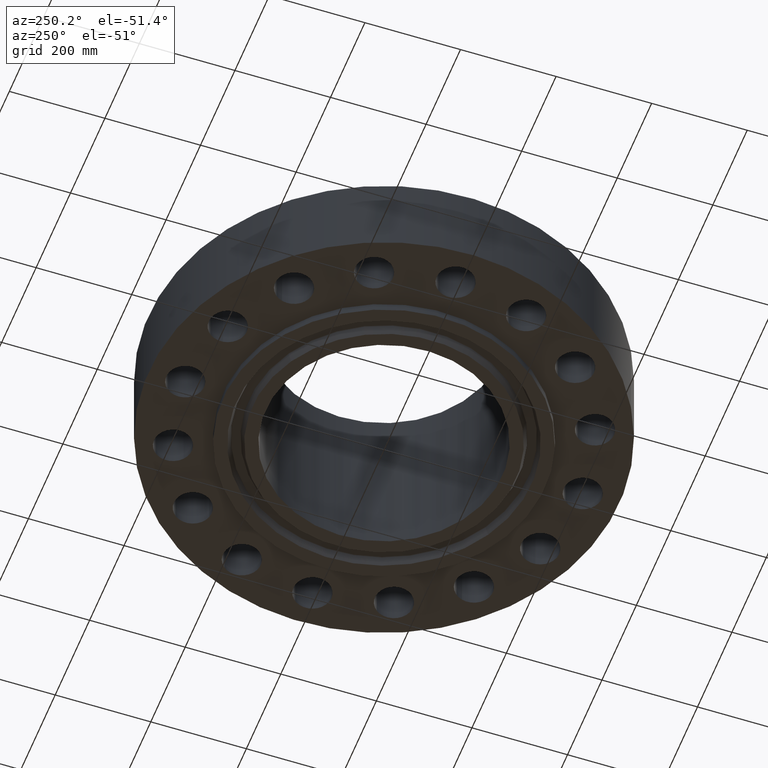
[diagram: clean part render]
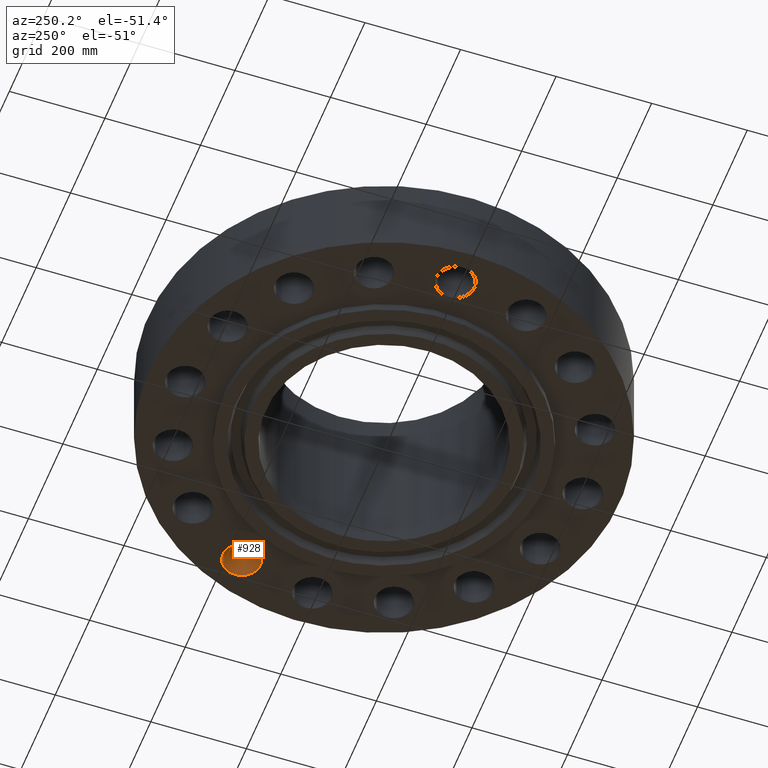
[diagram: same view with one face highlighted and labeled with its STEP entity id]
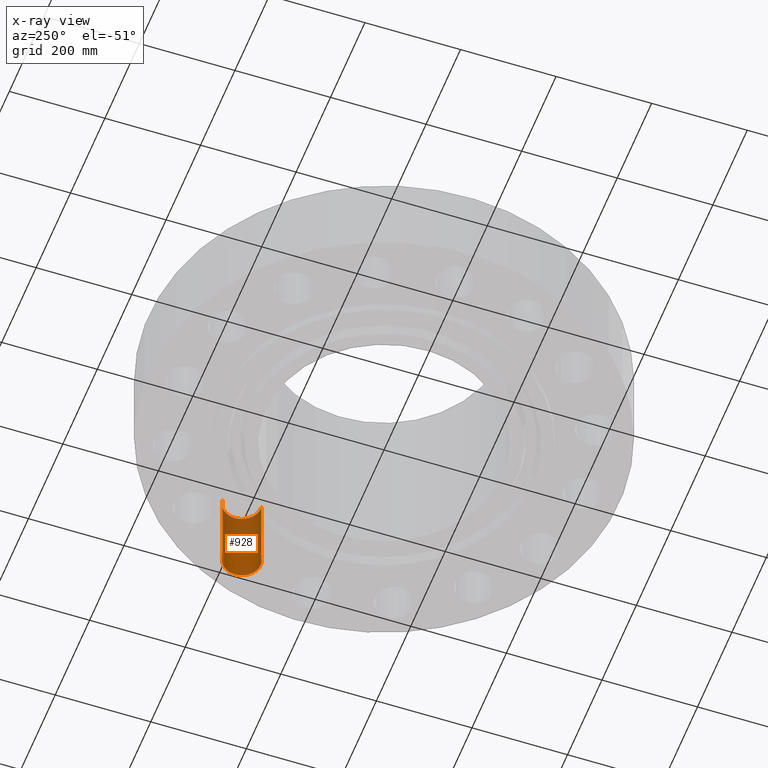
[diagram: x-ray of the same camera — body ghosted, the highlighted face saturated]
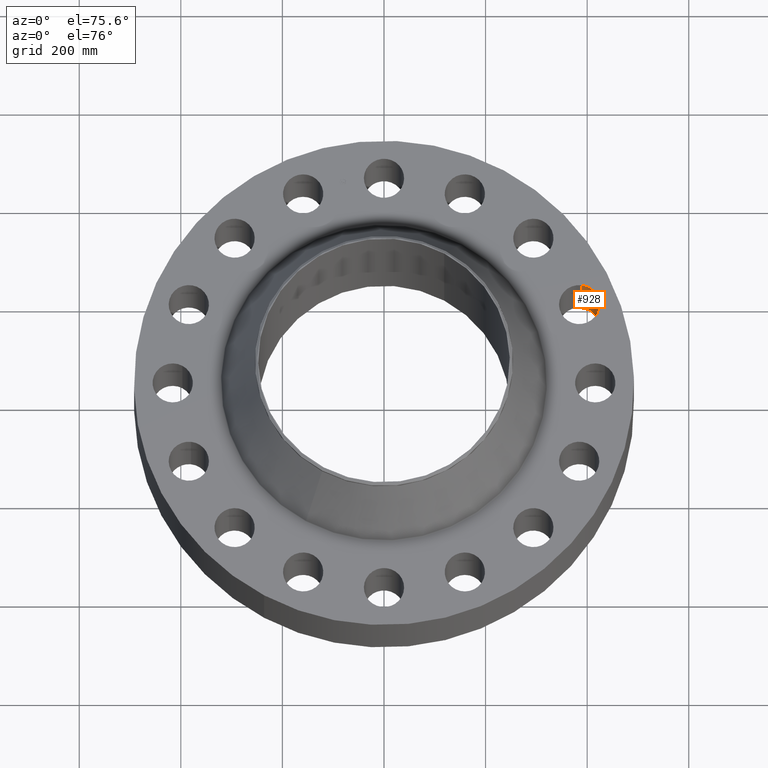
[diagram: same view with one face highlighted and labeled with its STEP entity id]
A machine part, auxiliary view. The second image highlights one B-rep face of the part: STEP entity #928.
The next image is the same camera in x-ray: the body ghosted, the highlighted face saturated — about 36% of this face is hidden behind the body in this view.
A second angle (auxiliary view) of the same face is appended — the face is thin or edge-on in the first view.
In plain terms, the highlighted cylindrical surface (edge-blend (fillet) strip) has radius 39.624 mm, axis along (0, -0, -1).
Its self-contained STEP definition (entity closure, byte-faithful):
#536=AXIS2_PLACEMENT_3D('Circle Axis2P3D',#534,#535,$) ;
#901=AXIS2_PLACEMENT_3D('Cylinder Axis2P3D',#898,#899,#900) ;
#919=AXIS2_PLACEMENT_3D('Circle Axis2P3D',#917,#918,$) ;
#534=CARTESIAN_POINT('Axis2P3D Location',(15.1285273449,6.266441205,0.)) ;
#538=CARTESIAN_POINT('Vertex',(15.2955957563,7.81746929822,0.)) ;
#540=CARTESIAN_POINT('Vertex',(14.9614589335,4.71541311179,0.)) ;
#898=CARTESIAN_POINT('Axis2P3D Location',(15.1285273449,6.266441205,6.99606299215)) ;
#903=CARTESIAN_POINT('Line Origine',(15.2955957563,7.81746929822,3.50000000001)) ;
#907=CARTESIAN_POINT('Vertex',(15.2955957563,7.81746929822,7.00000000003)) ;
#910=CARTESIAN_POINT('Line Origine',(14.9614589335,4.71541311179,3.50000000001)) ;
#914=CARTESIAN_POINT('Vertex',(14.9614589335,4.71541311179,7.00000000003)) ;
#917=CARTESIAN_POINT('Axis2P3D Location',(15.1285273449,6.266441205,7.00000000003)) ;
#535=DIRECTION('Axis2P3D Direction',(0.,0.,-0.0393700787402)) ;
#899=DIRECTION('Axis2P3D Direction',(0.,-0.,-0.0393700787402)) ;
#900=DIRECTION('Axis2P3D XDirection',(-0.00421634391778,-0.0391436526652,0.)) ;
#904=DIRECTION('Vector Direction',(0.,0.,-0.0393700787402)) ;
#911=DIRECTION('Vector Direction',(0.,0.,-0.0393700787402)) ;
#918=DIRECTION('Axis2P3D Direction',(0.,-0.,-0.0393700787402)) ;
#905=VECTOR('Line Direction',#904,0.0393700787402) ;
#912=VECTOR('Line Direction',#911,0.0393700787402) ;
#923=ORIENTED_EDGE('',*,*,#909,.F.) ;
#924=ORIENTED_EDGE('',*,*,#542,.T.) ;
#925=ORIENTED_EDGE('',*,*,#916,.T.) ;
#926=ORIENTED_EDGE('',*,*,#921,.F.) ;
#928=ADVANCED_FACE('PartBody',(#927),#902,.F.) ;
#537=CIRCLE('generated circle',#536,1.56000000001) ;
#920=CIRCLE('generated circle',#919,1.56000000001) ;
#902=CYLINDRICAL_SURFACE('generated cylinder',#901,1.56000000001) ;
#542=EDGE_CURVE('',#539,#541,#537,.T.) ;
#909=EDGE_CURVE('',#539,#908,#906,.F.) ;
#916=EDGE_CURVE('',#541,#915,#913,.F.) ;
#921=EDGE_CURVE('',#908,#915,#920,.T.) ;
#922=EDGE_LOOP('',(#923,#924,#925,#926)) ;
#927=FACE_OUTER_BOUND('',#922,.T.) ;
#906=LINE('Line',#903,#905) ;
#913=LINE('Line',#910,#912) ;
#539=VERTEX_POINT('',#538) ;
#541=VERTEX_POINT('',#540) ;
#908=VERTEX_POINT('',#907) ;
#915=VERTEX_POINT('',#914) ;